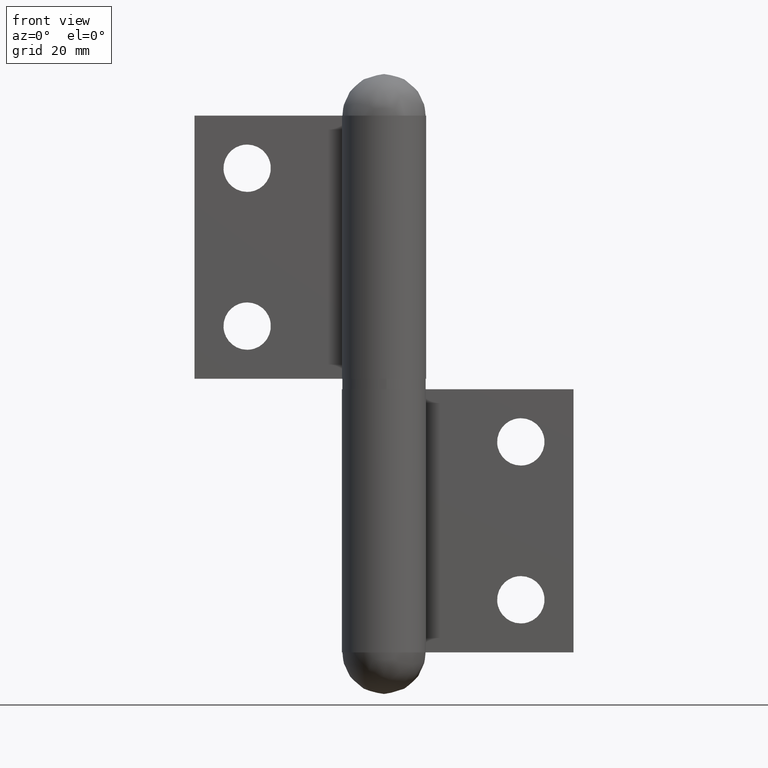
[diagram: clean part render]
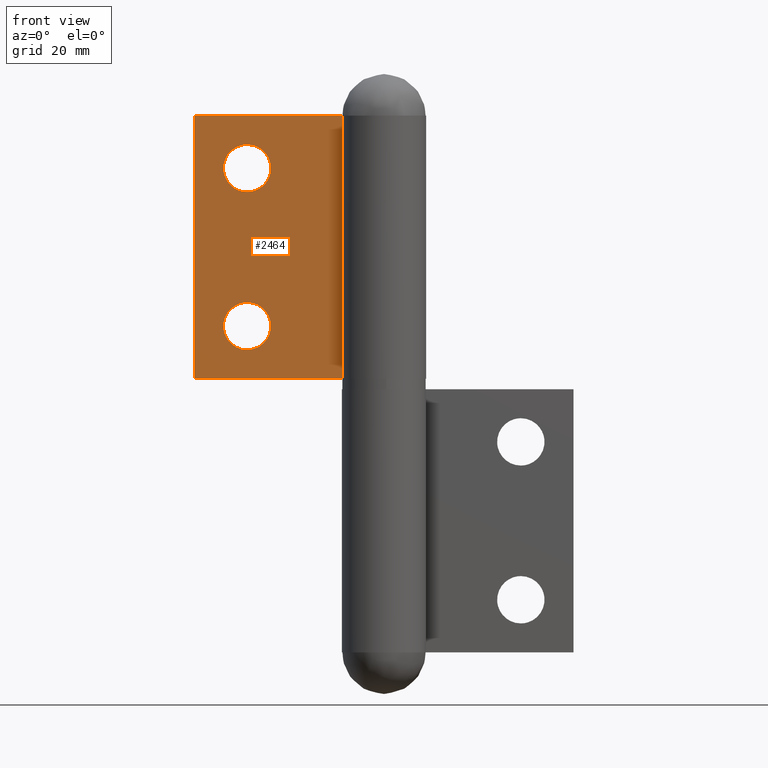
[diagram: same view with one face highlighted and labeled with its STEP entity id]
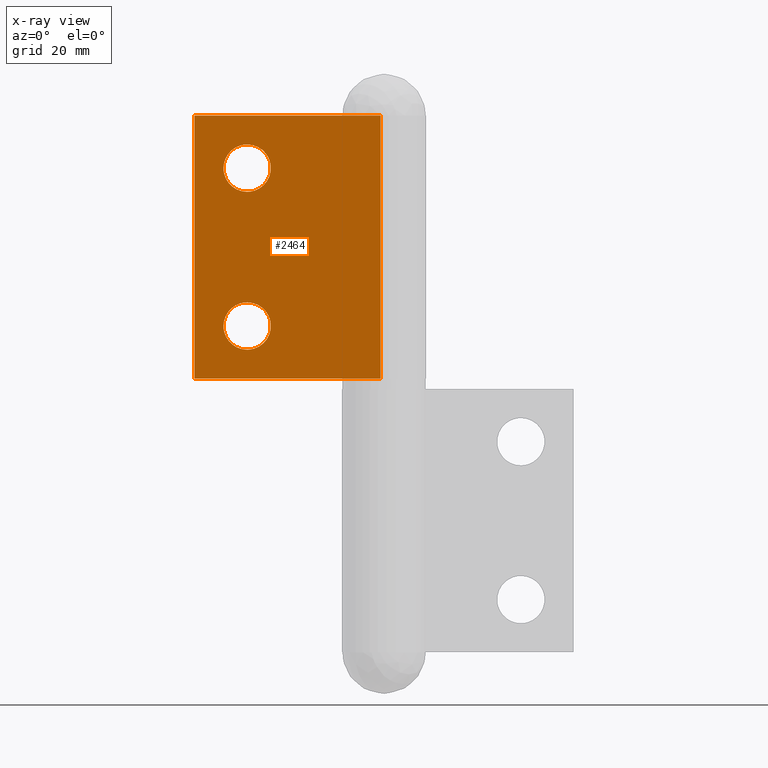
[diagram: x-ray of the same camera — body ghosted, the highlighted face saturated]
A machine part, front view. The second image highlights one B-rep face of the part: STEP entity #2464.
The next image is the same camera in x-ray: the body ghosted, the highlighted face saturated — about 0% of this face is hidden behind the body in this view.
In plain terms, the highlighted face is a freeform B-spline surface patch.
Its self-contained STEP definition (entity closure, byte-faithful):
#1829=CARTESIAN_POINT('',(-21.531457131391129,4.0,92.531154056187887));
#1830=VERTEX_POINT('',#1829);
#1831=CARTESIAN_POINT('',(-26.0,4.0,87.500000000000000));
#1832=VERTEX_POINT('',#1831);
#1833=CARTESIAN_POINT('',(-21.531457131391136,4.000000000000001,92.531154056187887));
#1834=CARTESIAN_POINT('',(-21.500000000000007,4.000000000000001,92.266508538668532));
#1835=CARTESIAN_POINT('',(-21.500000000000000,4.0,92.0));
#1836=CARTESIAN_POINT('',(-21.500000000000000,4.0,87.499999999999986));
#1837=CARTESIAN_POINT('',(-26.0,4.0,87.500000000000000));
#1845=(BOUNDED_CURVE()B_SPLINE_CURVE(2,(#1833,#1834,#1835,#1836,#1837),.UNSPECIFIED.,.F.,.U.)B_SPLINE_CURVE_WITH_KNOTS((3,2,3),(0.229562473498060,0.250000000000000,0.500000000000000),.UNSPECIFIED.)CURVE()GEOMETRIC_REPRESENTATION_ITEM()RATIONAL_B_SPLINE_CURVE((0.956026754153421,0.976055948313047,1.0,0.707106781186547,1.0))REPRESENTATION_ITEM(''));
#1846=EDGE_CURVE('',#1830,#1832,#1845,.T.);
#1887=CARTESIAN_POINT('',(-30.491606592880661,4.0,91.725281571803009));
#1888=VERTEX_POINT('',#1887);
#1894=CARTESIAN_POINT('',(-26.0,4.0,87.500000000000000));
#1895=CARTESIAN_POINT('',(-30.233177300527700,4.000000000000000,87.500000000000014));
#1896=CARTESIAN_POINT('',(-30.491606592880661,4.000000000000001,91.725281571803009));
#1904=(BOUNDED_CURVE()B_SPLINE_CURVE(2,(#1894,#1895,#1896),.UNSPECIFIED.,.F.,.U.)B_SPLINE_CURVE_WITH_KNOTS((3,3),(0.500000000000000,0.739332962219676),.UNSPECIFIED.)CURVE()GEOMETRIC_REPRESENTATION_ITEM()RATIONAL_B_SPLINE_CURVE((1.0,0.719603993309283,0.976072041625425))REPRESENTATION_ITEM(''));
#1905=EDGE_CURVE('',#1832,#1888,#1904,.T.);
#1928=CARTESIAN_POINT('',(-26.0,4.0,96.500000000000000));
#1929=VERTEX_POINT('',#1928);
#1930=CARTESIAN_POINT('',(-26.0,4.0,96.500000000000000));
#1931=CARTESIAN_POINT('',(-22.003214633637619,4.0,96.500000000000014));
#1932=CARTESIAN_POINT('',(-21.531457131391132,4.000000000000001,92.531154056187887));
#1940=(BOUNDED_CURVE()B_SPLINE_CURVE(2,(#1930,#1931,#1932),.UNSPECIFIED.,.F.,.U.)B_SPLINE_CURVE_WITH_KNOTS((3,3),(0.0,0.229562473498060),.UNSPECIFIED.)CURVE()GEOMETRIC_REPRESENTATION_ITEM()RATIONAL_B_SPLINE_CURVE((1.0,0.731050832873501,0.956026754153421))REPRESENTATION_ITEM(''));
#1941=EDGE_CURVE('',#1929,#1830,#1940,.T.);
#1943=CARTESIAN_POINT('',(-30.491606592880661,4.000000000000001,91.725281571803009));
#1944=CARTESIAN_POINT('',(-30.500000000000000,4.000000000000001,91.862512564865398));
#1945=CARTESIAN_POINT('',(-30.500000000000000,4.0,92.0));
#1946=CARTESIAN_POINT('',(-30.500000000000004,4.0,96.500000000000000));
#1947=CARTESIAN_POINT('',(-26.0,4.0,96.500000000000000));
#1955=(BOUNDED_CURVE()B_SPLINE_CURVE(2,(#1943,#1944,#1945,#1946,#1947),.UNSPECIFIED.,.F.,.U.)B_SPLINE_CURVE_WITH_KNOTS((3,2,3),(0.739332962219677,0.750000000000000,1.0),.UNSPECIFIED.)CURVE()GEOMETRIC_REPRESENTATION_ITEM()RATIONAL_B_SPLINE_CURVE((0.976072041625427,0.987502787877266,1.0,0.707106781186547,1.0))REPRESENTATION_ITEM(''));
#1956=EDGE_CURVE('',#1888,#1929,#1955,.T.);
#2015=CARTESIAN_POINT('',(-21.531457131391129,4.0,62.531154056187873));
#2016=VERTEX_POINT('',#2015);
#2017=CARTESIAN_POINT('',(-26.0,4.0,57.500000000000000));
#2018=VERTEX_POINT('',#2017);
#2019=CARTESIAN_POINT('',(-21.531457131391132,4.000000000000001,62.531154056187873));
#2020=CARTESIAN_POINT('',(-21.499999999999996,4.000000000000000,62.266508538668511));
#2021=CARTESIAN_POINT('',(-21.500000000000000,4.0,62.0));
#2022=CARTESIAN_POINT('',(-21.500000000000000,4.0,57.500000000000000));
#2023=CARTESIAN_POINT('',(-26.0,4.0,57.500000000000000));
#2031=(BOUNDED_CURVE()B_SPLINE_CURVE(2,(#2019,#2020,#2021,#2022,#2023),.UNSPECIFIED.,.F.,.U.)B_SPLINE_CURVE_WITH_KNOTS((3,2,3),(0.229562473498061,0.250000000000000,0.500000000000000),.UNSPECIFIED.)CURVE()GEOMETRIC_REPRESENTATION_ITEM()RATIONAL_B_SPLINE_CURVE((0.956026754153421,0.976055948313047,1.0,0.707106781186547,1.0))REPRESENTATION_ITEM(''));
#2032=EDGE_CURVE('',#2016,#2018,#2031,.T.);
#2073=CARTESIAN_POINT('',(-30.491606592880661,4.0,61.725281571803009));
#2074=VERTEX_POINT('',#2073);
#2080=CARTESIAN_POINT('',(-26.0,4.0,57.500000000000000));
#2081=CARTESIAN_POINT('',(-30.233177300527700,4.000000000000000,57.500000000000007));
#2082=CARTESIAN_POINT('',(-30.491606592880661,4.000000000000001,61.725281571803016));
#2090=(BOUNDED_CURVE()B_SPLINE_CURVE(2,(#2080,#2081,#2082),.UNSPECIFIED.,.F.,.U.)B_SPLINE_CURVE_WITH_KNOTS((3,3),(0.500000000000000,0.739332962219676),.UNSPECIFIED.)CURVE()GEOMETRIC_REPRESENTATION_ITEM()RATIONAL_B_SPLINE_CURVE((1.0,0.719603993309283,0.976072041625425))REPRESENTATION_ITEM(''));
#2091=EDGE_CURVE('',#2018,#2074,#2090,.T.);
#2114=CARTESIAN_POINT('',(-26.0,4.0,66.500000000000000));
#2115=VERTEX_POINT('',#2114);
#2116=CARTESIAN_POINT('',(-26.0,4.0,66.500000000000000));
#2117=CARTESIAN_POINT('',(-22.003214633637612,4.0,66.500000000000000));
#2118=CARTESIAN_POINT('',(-21.531457131391136,4.0,62.531154056187873));
#2126=(BOUNDED_CURVE()B_SPLINE_CURVE(2,(#2116,#2117,#2118),.UNSPECIFIED.,.F.,.U.)B_SPLINE_CURVE_WITH_KNOTS((3,3),(0.0,0.229562473498061),.UNSPECIFIED.)CURVE()GEOMETRIC_REPRESENTATION_ITEM()RATIONAL_B_SPLINE_CURVE((1.0,0.731050832873500,0.956026754153421))REPRESENTATION_ITEM(''));
#2127=EDGE_CURVE('',#2115,#2016,#2126,.T.);
#2129=CARTESIAN_POINT('',(-30.491606592880654,4.000000000000001,61.725281571803009));
#2130=CARTESIAN_POINT('',(-30.500000000000004,4.0,61.862512564865405));
#2131=CARTESIAN_POINT('',(-30.500000000000000,4.0,62.0));
#2132=CARTESIAN_POINT('',(-30.500000000000004,4.0,66.500000000000014));
#2133=CARTESIAN_POINT('',(-26.0,4.0,66.500000000000000));
#2141=(BOUNDED_CURVE()B_SPLINE_CURVE(2,(#2129,#2130,#2131,#2132,#2133),.UNSPECIFIED.,.F.,.U.)B_SPLINE_CURVE_WITH_KNOTS((3,2,3),(0.739332962219677,0.750000000000000,1.0),.UNSPECIFIED.)CURVE()GEOMETRIC_REPRESENTATION_ITEM()RATIONAL_B_SPLINE_CURVE((0.976072041625427,0.987502787877266,1.0,0.707106781186547,1.0))REPRESENTATION_ITEM(''));
#2142=EDGE_CURVE('',#2074,#2115,#2141,.T.);
#2184=CARTESIAN_POINT('',(-0.634428877022476,4.0,102.0));
#2185=VERTEX_POINT('',#2184);
#2242=CARTESIAN_POINT('',(-36.0,4.0,102.0));
#2243=VERTEX_POINT('',#2242);
#2249=CARTESIAN_POINT('',(-0.634428877022476,4.0,102.0));
#2250=CARTESIAN_POINT('',(-36.0,4.0,102.0));
#2251=QUASI_UNIFORM_CURVE('',1,(#2249,#2250),.UNSPECIFIED.,.F.,.U.);
#2252=EDGE_CURVE('',#2185,#2243,#2251,.T.);
#2262=CARTESIAN_POINT('',(-0.634428877022476,4.0,52.0));
#2263=VERTEX_POINT('',#2262);
#2285=CARTESIAN_POINT('',(-36.0,4.0,52.0));
#2286=VERTEX_POINT('',#2285);
#2287=CARTESIAN_POINT('',(-0.634428877022476,4.0,52.0));
#2288=CARTESIAN_POINT('',(-36.0,4.0,52.0));
#2289=QUASI_UNIFORM_CURVE('',1,(#2287,#2288),.UNSPECIFIED.,.F.,.U.);
#2290=EDGE_CURVE('',#2263,#2286,#2289,.T.);
#2347=CARTESIAN_POINT('',(-36.0,4.0,52.0));
#2348=CARTESIAN_POINT('',(-36.0,4.0,102.0));
#2349=QUASI_UNIFORM_CURVE('',1,(#2347,#2348),.UNSPECIFIED.,.F.,.U.);
#2350=EDGE_CURVE('',#2286,#2243,#2349,.T.);
#2431=CARTESIAN_POINT('',(-0.634428877022476,4.0,52.0));
#2432=CARTESIAN_POINT('',(-0.634428877022476,4.0,102.0));
#2433=QUASI_UNIFORM_CURVE('',1,(#2431,#2432),.UNSPECIFIED.,.F.,.U.);
#2434=EDGE_CURVE('',#2263,#2185,#2433,.T.);
#2441=CARTESIAN_POINT('',(-37.766510209047389,4.0,49.502500096909692));
#2442=CARTESIAN_POINT('',(-37.766510209047389,4.0,104.497501244194790));
#2443=CARTESIAN_POINT('',(1.132082280603444,4.0,49.502500096909692));
#2444=CARTESIAN_POINT('',(1.132082280603444,4.0,104.497501244194790));
#2445=B_SPLINE_SURFACE_WITH_KNOTS('',1,1,((#2441,#2443),(#2442,#2444)),.UNSPECIFIED.,.F.,.F.,.U.,(2,2),(2,2),(0.0,54.995001147285137),(0.0,38.898592489650831),.UNSPECIFIED.);
#2446=ORIENTED_EDGE('',*,*,#2252,.T.);
#2447=ORIENTED_EDGE('',*,*,#2350,.F.);
#2448=ORIENTED_EDGE('',*,*,#2290,.F.);
#2449=ORIENTED_EDGE('',*,*,#2434,.T.);
#2450=EDGE_LOOP('',(#2446,#2447,#2448,#2449));
#2451=FACE_OUTER_BOUND('',#2450,.T.);
#2452=ORIENTED_EDGE('',*,*,#2091,.T.);
#2453=ORIENTED_EDGE('',*,*,#2142,.T.);
#2454=ORIENTED_EDGE('',*,*,#2127,.T.);
#2455=ORIENTED_EDGE('',*,*,#2032,.T.);
#2456=EDGE_LOOP('',(#2452,#2453,#2454,#2455));
#2457=FACE_BOUND('',#2456,.T.);
#2458=ORIENTED_EDGE('',*,*,#1905,.T.);
#2459=ORIENTED_EDGE('',*,*,#1956,.T.);
#2460=ORIENTED_EDGE('',*,*,#1941,.T.);
#2461=ORIENTED_EDGE('',*,*,#1846,.T.);
#2462=EDGE_LOOP('',(#2458,#2459,#2460,#2461));
#2463=FACE_BOUND('',#2462,.T.);
#2464=ADVANCED_FACE('',(#2451,#2457,#2463),#2445,.F.);